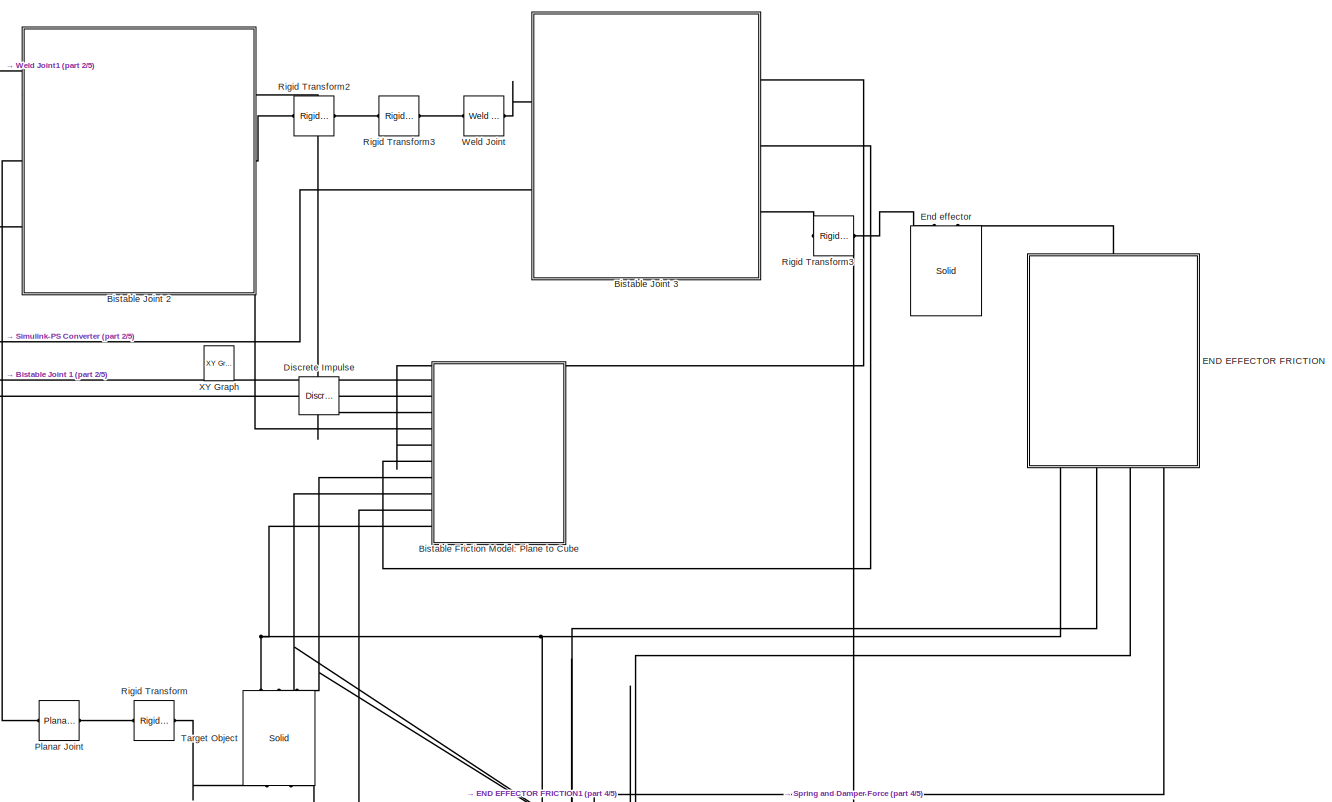
[diagram: root canvas - part 1/5, top center region]
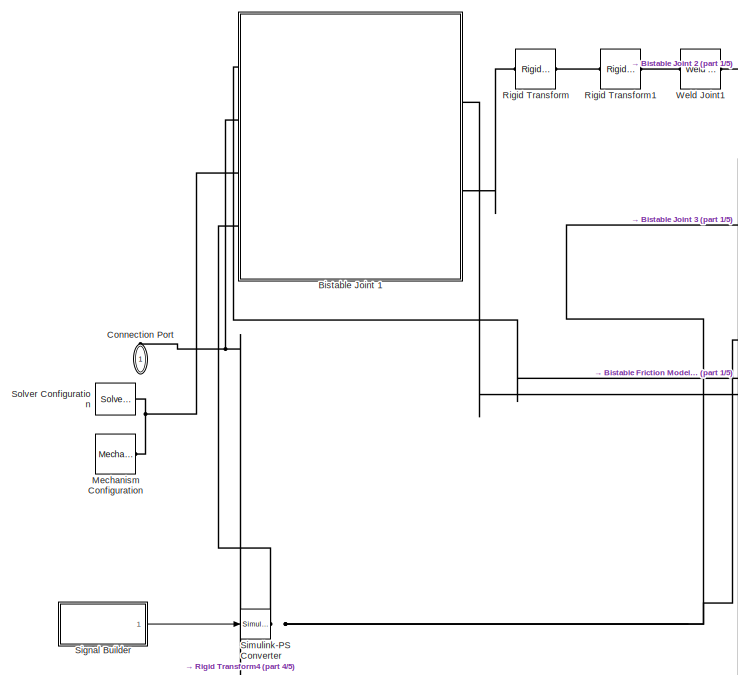
[diagram: root canvas - part 2/5, top left region]
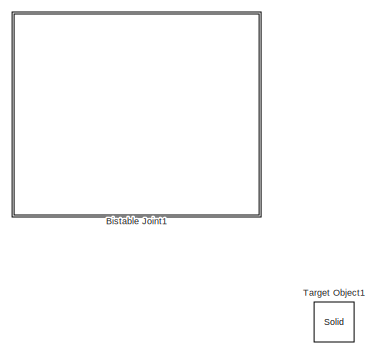
[diagram: root canvas - part 3/5, top right region]
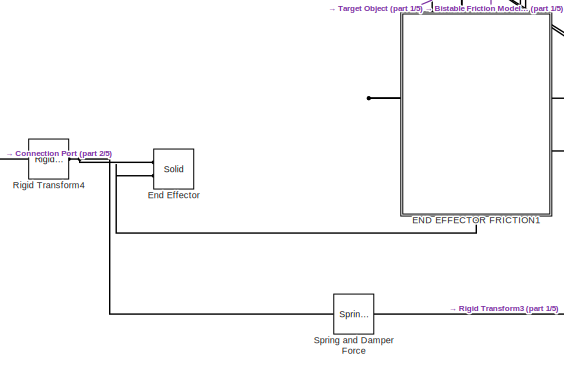
[diagram: root canvas - part 4/5, middle left region]
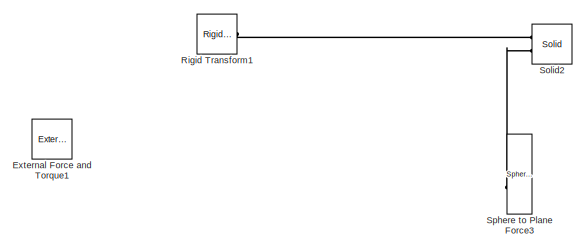
[diagram: root canvas - part 5/5, bottom right region]
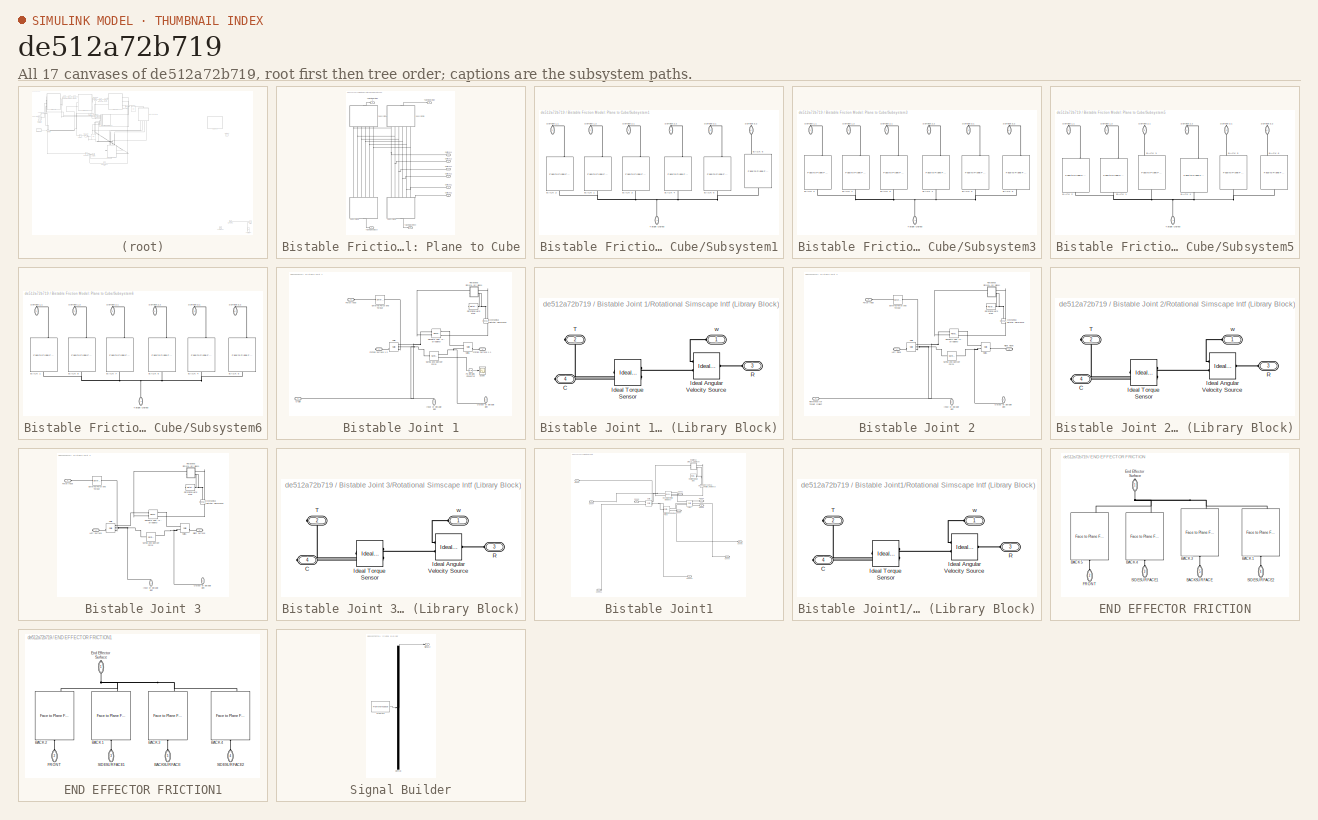
[diagram: thumbnail index - all 17 canvases of the model, root first then tree order]
MODEL slx_de512a72b719
KIND model
CONFIG AbsTol = 1e-7
CONFIG EnableMultiTasking = off
CONFIG FixedStep = auto
CONFIG MaxStep = 1e-4
CONFIG MinStep = auto
CONFIG RelTol = 1e-6
CONFIG SampleTimeConstraint = Unconstrained
CONFIG Solver = ode15s
CONFIG SolverName = ode15s
CONFIG StartTime = 0.0
CONFIG StopTime = 3.0
BLOCK [SubSystem] Bistable Friction Model: Plane to Cube
  Ports = [0, 0, 0, 0, 0, 10]
  RequestExecContextInheritance = off
BLOCK [SubSystem] Bistable Friction Model: Plane to Cube/Subsystem1
  Ports = [0, 0, 0, 0, 0, 1, 6]
  RequestExecContextInheritance = off
BLOCK [Reference] Bistable Friction Model: Plane to Cube/Subsystem1/BACK 1  REF=Contact_Forces_Lib/3D/Composite
Forces/Face to Plane Force
  Ports = [0, 1, 0, 0, 0, 1, 1]
  SourceBlock = Contact_Forces_Lib/3D/Composite\nForces/Face to Plane Force
  SourceProductName = Simscape Multibody Contact Forces Library
  SourceType = Face to Plane Force
BLOCK [Reference] Bistable Friction Model: Plane to Cube/Subsystem1/BACK 2  REF=Contact_Forces_Lib/3D/Composite
Forces/Face to Plane Force
  Ports = [0, 1, 0, 0, 0, 1, 1]
  SourceBlock = Contact_Forces_Lib/3D/Composite\nForces/Face to Plane Force
  SourceProductName = Simscape Multibody Contact Forces Library
  SourceType = Face to Plane Force
BLOCK [Reference] Bistable Friction Model: Plane to Cube/Subsystem1/BACK 3  REF=Contact_Forces_Lib/3D/Composite
Forces/Face to Plane Force
  Ports = [0, 1, 0, 0, 0, 1, 1]
  SourceBlock = Contact_Forces_Lib/3D/Composite\nForces/Face to Plane Force
  SourceProductName = Simscape Multibody Contact Forces Library
  SourceType = Face to Plane Force
BLOCK [Reference] Bistable Friction Model: Plane to Cube/Subsystem1/BACK 4  REF=Contact_Forces_Lib/3D/Composite
Forces/Face to Plane Force
  Ports = [0, 1, 0, 0, 0, 1, 1]
  SourceBlock = Contact_Forces_Lib/3D/Composite\nForces/Face to Plane Force
  SourceProductName = Simscape Multibody Contact Forces Library
  SourceType = Face to Plane Force
BLOCK [Reference] Bistable Friction Model: Plane to Cube/Subsystem1/BACK 5  REF=Contact_Forces_Lib/3D/Composite
Forces/Face to Plane Force
  Ports = [0, 1, 0, 0, 0, 1, 1]
  SourceBlock = Contact_Forces_Lib/3D/Composite\nForces/Face to Plane Force
  SourceProductName = Simscape Multibody Contact Forces Library
  SourceType = Face to Plane Force
BLOCK [Reference] Bistable Friction Model: Plane to Cube/Subsystem1/BACK 6  REF=Contact_Forces_Lib/3D/Composite
Forces/Face to Plane Force
  Ports = [0, 1, 0, 0, 0, 1, 1]
  SourceBlock = Contact_Forces_Lib/3D/Composite\nForces/Face to Plane Force
  SourceProductName = Simscape Multibody Contact Forces Library
  SourceType = Face to Plane Force
BLOCK [PMIOPort] Bistable Friction Model: Plane to Cube/Subsystem1/Surface 1.1
  Side = Right
BLOCK [PMIOPort] Bistable Friction Model: Plane to Cube/Subsystem1/Surface 1.2
  Port = 2
  Side = Right
BLOCK [PMIOPort] Bistable Friction Model: Plane to Cube/Subsystem1/Surface 2.1
  Port = 3
  Side = Right
BLOCK [PMIOPort] Bistable Friction Model: Plane to Cube/Subsystem1/Surface 2.2
  Port = 4
  Side = Right
BLOCK [PMIOPort] Bistable Friction Model: Plane to Cube/Subsystem1/Surface 3.1
  Port = 5
  Side = Right
BLOCK [PMIOPort] Bistable Friction Model: Plane to Cube/Subsystem1/Surface 3.2
  Port = 6
  Side = Right
BLOCK [PMIOPort] Bistable Friction Model: Plane to Cube/Subsystem1/Target Object
  Port = 7
  Side = Left
BLOCK [SubSystem] Bistable Friction Model: Plane to Cube/Subsystem3
  Ports = [0, 0, 0, 0, 0, 1, 6]
  RequestExecContextInheritance = off
BLOCK [Reference] Bistable Friction Model: Plane to Cube/Subsystem3/BACK 1  REF=Contact_Forces_Lib/3D/Composite
Forces/Face to Plane Force
  Ports = [0, 1, 0, 0, 0, 1, 1]
  SourceBlock = Contact_Forces_Lib/3D/Composite\nForces/Face to Plane Force
  SourceProductName = Simscape Multibody Contact Forces Library
  SourceType = Face to Plane Force
BLOCK [Reference] Bistable Friction Model: Plane to Cube/Subsystem3/BACK 2  REF=Contact_Forces_Lib/3D/Composite
Forces/Face to Plane Force
  Ports = [0, 1, 0, 0, 0, 1, 1]
  SourceBlock = Contact_Forces_Lib/3D/Composite\nForces/Face to Plane Force
  SourceProductName = Simscape Multibody Contact Forces Library
  SourceType = Face to Plane Force
BLOCK [Reference] Bistable Friction Model: Plane to Cube/Subsystem3/BACK 3  REF=Contact_Forces_Lib/3D/Composite
Forces/Face to Plane Force
  Ports = [0, 1, 0, 0, 0, 1, 1]
  SourceBlock = Contact_Forces_Lib/3D/Composite\nForces/Face to Plane Force
  SourceProductName = Simscape Multibody Contact Forces Library
  SourceType = Face to Plane Force
BLOCK [Reference] Bistable Friction Model: Plane to Cube/Subsystem3/BACK 4  REF=Contact_Forces_Lib/3D/Composite
Forces/Face to Plane Force
  Ports = [0, 1, 0, 0, 0, 1, 1]
  SourceBlock = Contact_Forces_Lib/3D/Composite\nForces/Face to Plane Force
  SourceProductName = Simscape Multibody Contact Forces Library
  SourceType = Face to Plane Force
BLOCK [Reference] Bistable Friction Model: Plane to Cube/Subsystem3/BACK 5  REF=Contact_Forces_Lib/3D/Composite
Forces/Face to Plane Force
  Ports = [0, 1, 0, 0, 0, 1, 1]
  SourceBlock = Contact_Forces_Lib/3D/Composite\nForces/Face to Plane Force
  SourceProductName = Simscape Multibody Contact Forces Library
  SourceType = Face to Plane Force
BLOCK [Reference] Bistable Friction Model: Plane to Cube/Subsystem3/BACK 6  REF=Contact_Forces_Lib/3D/Composite
Forces/Face to Plane Force
  Ports = [0, 1, 0, 0, 0, 1, 1]
  SourceBlock = Contact_Forces_Lib/3D/Composite\nForces/Face to Plane Force
  SourceProductName = Simscape Multibody Contact Forces Library
  SourceType = Face to Plane Force
BLOCK [PMIOPort] Bistable Friction Model: Plane to Cube/Subsystem3/Surface 1.1
  Side = Right
BLOCK [PMIOPort] Bistable Friction Model: Plane to Cube/Subsystem3/Surface 1.2
  Port = 2
  Side = Right
BLOCK [PMIOPort] Bistable Friction Model: Plane to Cube/Subsystem3/Surface 2.1
  Port = 3
  Side = Right
BLOCK [PMIOPort] Bistable Friction Model: Plane to Cube/Subsystem3/Surface 2.2
  Port = 4
  Side = Right
BLOCK [PMIOPort] Bistable Friction Model: Plane to Cube/Subsystem3/Surface 3.1
  Port = 5
  Side = Right
BLOCK [PMIOPort] Bistable Friction Model: Plane to Cube/Subsystem3/Surface 3.2
  Port = 6
  Side = Right
BLOCK [PMIOPort] Bistable Friction Model: Plane to Cube/Subsystem3/Target Object
  Port = 7
  Side = Left
BLOCK [SubSystem] Bistable Friction Model: Plane to Cube/Subsystem5
  Ports = [0, 0, 0, 0, 0, 1, 6]
  RequestExecContextInheritance = off
BLOCK [Reference] Bistable Friction Model: Plane to Cube/Subsystem5/BACK 1  REF=Contact_Forces_Lib/3D/Composite
Forces/Face to Plane Force
  Ports = [0, 1, 0, 0, 0, 1, 1]
  SourceBlock = Contact_Forces_Lib/3D/Composite\nForces/Face to Plane Force
  SourceProductName = Simscape Multibody Contact Forces Library
  SourceType = Face to Plane Force
BLOCK [Reference] Bistable Friction Model: Plane to Cube/Subsystem5/BACK 2  REF=Contact_Forces_Lib/3D/Composite
Forces/Face to Plane Force
  Ports = [0, 1, 0, 0, 0, 1, 1]
  SourceBlock = Contact_Forces_Lib/3D/Composite\nForces/Face to Plane Force
  SourceProductName = Simscape Multibody Contact Forces Library
  SourceType = Face to Plane Force
BLOCK [Reference] Bistable Friction Model: Plane to Cube/Subsystem5/BACK 3  REF=Contact_Forces_Lib/3D/Composite
Forces/Face to Plane Force
  Ports = [0, 1, 0, 0, 0, 1, 1]
  SourceBlock = Contact_Forces_Lib/3D/Composite\nForces/Face to Plane Force
  SourceProductName = Simscape Multibody Contact Forces Library
  SourceType = Face to Plane Force
BLOCK [Reference] Bistable Friction Model: Plane to Cube/Subsystem5/BACK 4  REF=Contact_Forces_Lib/3D/Composite
Forces/Face to Plane Force
  Ports = [0, 1, 0, 0, 0, 1, 1]
  SourceBlock = Contact_Forces_Lib/3D/Composite\nForces/Face to Plane Force
  SourceProductName = Simscape Multibody Contact Forces Library
  SourceType = Face to Plane Force
BLOCK [Reference] Bistable Friction Model: Plane to Cube/Subsystem5/BACK 5  REF=Contact_Forces_Lib/3D/Composite
Forces/Face to Plane Force
  Ports = [0, 1, 0, 0, 0, 1, 1]
  SourceBlock = Contact_Forces_Lib/3D/Composite\nForces/Face to Plane Force
  SourceProductName = Simscape Multibody Contact Forces Library
  SourceType = Face to Plane Force
BLOCK [Reference] Bistable Friction Model: Plane to Cube/Subsystem5/BACK 6  REF=Contact_Forces_Lib/3D/Composite
Forces/Face to Plane Force
  Ports = [0, 1, 0, 0, 0, 1, 1]
  SourceBlock = Contact_Forces_Lib/3D/Composite\nForces/Face to Plane Force
  SourceProductName = Simscape Multibody Contact Forces Library
  SourceType = Face to Plane Force
BLOCK [PMIOPort] Bistable Friction Model: Plane to Cube/Subsystem5/Surface 1.1
  Side = Right
BLOCK [PMIOPort] Bistable Friction Model: Plane to Cube/Subsystem5/Surface 1.2
  Port = 2
  Side = Right
BLOCK [PMIOPort] Bistable Friction Model: Plane to Cube/Subsystem5/Surface 2.1
  Port = 3
  Side = Right
BLOCK [PMIOPort] Bistable Friction Model: Plane to Cube/Subsystem5/Surface 2.2
  Port = 4
  Side = Right
BLOCK [PMIOPort] Bistable Friction Model: Plane to Cube/Subsystem5/Surface 3.1
  Port = 5
  Side = Right
BLOCK [PMIOPort] Bistable Friction Model: Plane to Cube/Subsystem5/Surface 3.2
  Port = 6
  Side = Right
BLOCK [PMIOPort] Bistable Friction Model: Plane to Cube/Subsystem5/Target Object
  Port = 7
  Side = Left
BLOCK [SubSystem] Bistable Friction Model: Plane to Cube/Subsystem6
  Ports = [0, 0, 0, 0, 0, 1, 6]
  RequestExecContextInheritance = off
BLOCK [Reference] Bistable Friction Model: Plane to Cube/Subsystem6/BACK 1  REF=Contact_Forces_Lib/3D/Composite
Forces/Face to Plane Force
  Ports = [0, 1, 0, 0, 0, 1, 1]
  SourceBlock = Contact_Forces_Lib/3D/Composite\nForces/Face to Plane Force
  SourceProductName = Simscape Multibody Contact Forces Library
  SourceType = Face to Plane Force
BLOCK [Reference] Bistable Friction Model: Plane to Cube/Subsystem6/BACK 4  REF=Contact_Forces_Lib/3D/Composite
Forces/Face to Plane Force
  Ports = [0, 1, 0, 0, 0, 1, 1]
  SourceBlock = Contact_Forces_Lib/3D/Composite\nForces/Face to Plane Force
  SourceProductName = Simscape Multibody Contact Forces Library
  SourceType = Face to Plane Force
BLOCK [Reference] Bistable Friction Model: Plane to Cube/Subsystem6/BACK 5  REF=Contact_Forces_Lib/3D/Composite
Forces/Face to Plane Force
  Ports = [0, 1, 0, 0, 0, 1, 1]
  SourceBlock = Contact_Forces_Lib/3D/Composite\nForces/Face to Plane Force
  SourceProductName = Simscape Multibody Contact Forces Library
  SourceType = Face to Plane Force
BLOCK [Reference] Bistable Friction Model: Plane to Cube/Subsystem6/BACK 6  REF=Contact_Forces_Lib/3D/Composite
Forces/Face to Plane Force
  Ports = [0, 1, 0, 0, 0, 1, 1]
  SourceBlock = Contact_Forces_Lib/3D/Composite\nForces/Face to Plane Force
  SourceProductName = Simscape Multibody Contact Forces Library
  SourceType = Face to Plane Force
BLOCK [Reference] Bistable Friction Model: Plane to Cube/Subsystem6/BACK 7  REF=Contact_Forces_Lib/3D/Composite
Forces/Face to Plane Force
  Ports = [0, 1, 0, 0, 0, 1, 1]
  SourceBlock = Contact_Forces_Lib/3D/Composite\nForces/Face to Plane Force
  SourceProductName = Simscape Multibody Contact Forces Library
  SourceType = Face to Plane Force
BLOCK [Reference] Bistable Friction Model: Plane to Cube/Subsystem6/BACK 8  REF=Contact_Forces_Lib/3D/Composite
Forces/Face to Plane Force
  Ports = [0, 1, 0, 0, 0, 1, 1]
  SourceBlock = Contact_Forces_Lib/3D/Composite\nForces/Face to Plane Force
  SourceProductName = Simscape Multibody Contact Forces Library
  SourceType = Face to Plane Force
BLOCK [PMIOPort] Bistable Friction Model: Plane to Cube/Subsystem6/Surface 1.1
  Side = Right
BLOCK [PMIOPort] Bistable Friction Model: Plane to Cube/Subsystem6/Surface 1.2
  Port = 2
  Side = Right
BLOCK [PMIOPort] Bistable Friction Model: Plane to Cube/Subsystem6/Surface 2.1
  Port = 3
  Side = Right
BLOCK [PMIOPort] Bistable Friction Model: Plane to Cube/Subsystem6/Surface 2.2
  Port = 4
  Side = Right
BLOCK [PMIOPort] Bistable Friction Model: Plane to Cube/Subsystem6/Surface 3.1
  Port = 5
  Side = Right
BLOCK [PMIOPort] Bistable Friction Model: Plane to Cube/Subsystem6/Surface 3.2
  Port = 6
  Side = Right
BLOCK [PMIOPort] Bistable Friction Model: Plane to Cube/Subsystem6/Target Object
  Port = 7
  Side = Left
BLOCK [PMIOPort] Bistable Friction Model: Plane to Cube/Surface 1.1
  Side = Left
BLOCK [PMIOPort] Bistable Friction Model: Plane to Cube/Surface 1.2
  Port = 2
  Side = Left
BLOCK [PMIOPort] Bistable Friction Model: Plane to Cube/Surface 2.1
  Port = 3
  Side = Left
BLOCK [PMIOPort] Bistable Friction Model: Plane to Cube/Surface 2.2
  Port = 4
  Side = Left
BLOCK [PMIOPort] Bistable Friction Model: Plane to Cube/Surface 3.1
  Port = 5
  Side = Left
BLOCK [PMIOPort] Bistable Friction Model: Plane to Cube/Surface 3.2
  Port = 6
  Side = Left
BLOCK [PMIOPort] Bistable Friction Model: Plane to Cube/Target Object Back
  Port = 7
  Side = Left
BLOCK [PMIOPort] Bistable Friction Model: Plane to Cube/Target Object Front
  Port = 10
  Side = Left
BLOCK [PMIOPort] Bistable Friction Model: Plane to Cube/Target Object Side
  Port = 8
  Side = Left
BLOCK [PMIOPort] Bistable Friction Model: Plane to Cube/Target Object Side 2
  Port = 9
  Side = Left
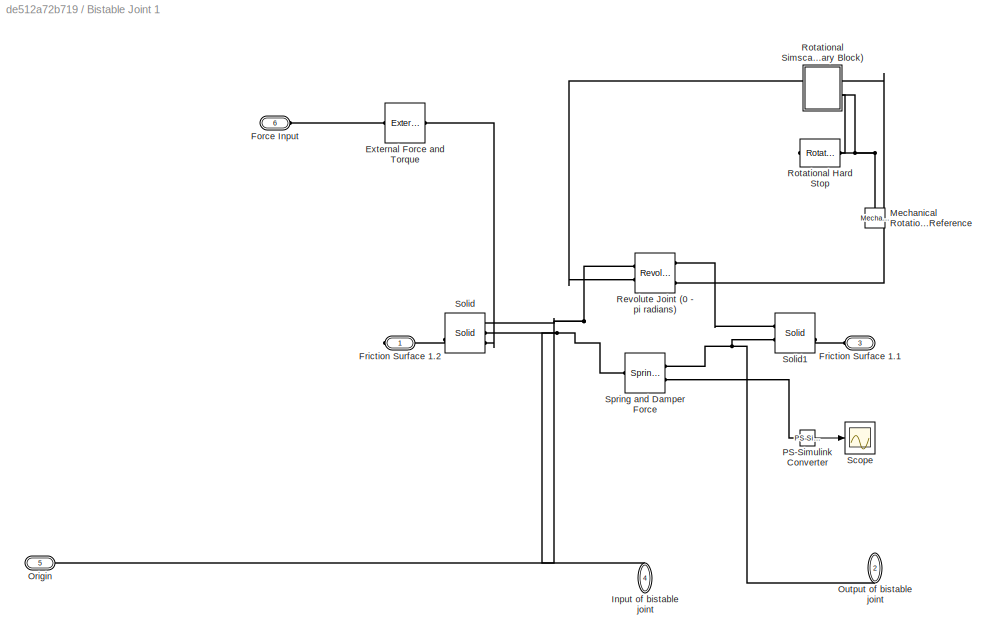
BLOCK [SubSystem] Bistable Joint 1
  Ports = [0, 0, 0, 0, 0, 4, 2]
  RequestExecContextInheritance = off
BLOCK [Reference] Bistable Joint 1/External Force and Torque  REF=sm_lib/Forces and
Torques/External Force
and Torque
  Ports = [0, 0, 0, 0, 0, 1, 1]
  SourceBlock = sm_lib/Forces and\nTorques/External Force\nand Torque
  SourceProductBaseCode = MS
  SourceProductName = Simscape Multibody
  SourceType = External Force\nand Torque
BLOCK [PMIOPort] Bistable Joint 1/Force Input
  Port = 6
  Side = Left
BLOCK [PMIOPort] Bistable Joint 1/Friction Surface 1.1
  Port = 3
  Side = Left
BLOCK [PMIOPort] Bistable Joint 1/Friction Surface 1.2
  Side = Right
BLOCK [PMIOPort] Bistable Joint 1/Input of bistable joint
  Port = 4
  Side = Left
BLOCK [Reference] Bistable Joint 1/Mechanical Rotational Reference  REF=fl_lib/Mechanical/Rotational Elements/Mechanical
Rotational Reference
  Ports = [0, 0, 0, 0, 0, 1]
  SourceBlock = fl_lib/Mechanical/Rotational Elements/Mechanical\nRotational Reference
  SourceProductBaseCode = SS
  SourceProductName = Simscape
  SourceType = Mechanical\nRotational Reference
BLOCK [PMIOPort] Bistable Joint 1/Origin
  Port = 5
  Side = Left
BLOCK [PMIOPort] Bistable Joint 1/Output of bistable joint
  Port = 2
  Side = Right
BLOCK [Reference] Bistable Joint 1/PS-Simulink Converter  REF=nesl_utility/PS-Simulink
Converter
  Ports = [0, 1, 0, 0, 0, 1]
  SourceBlock = nesl_utility/PS-Simulink\nConverter
  SourceProductBaseCode = SS
  SourceProductName = Simscape
  SourceType = PS-Simulink\nConverter
BLOCK [Reference] Bistable Joint 1/Revolute Joint (0 - pi radians)  REF=sm_lib/Joints/Revolute Joint
  Ports = [0, 0, 0, 0, 0, 2, 3]
  SourceBlock = sm_lib/Joints/Revolute Joint
  SourceProductBaseCode = MS
  SourceProductName = Simscape Multibody
  SourceType = Revolute Joint
BLOCK [Reference] Bistable Joint 1/Rotational Hard Stop  REF=fl_lib/Mechanical/Rotational Elements/Rotational Hard Stop
  Ports = [0, 0, 0, 0, 0, 1, 1]
  SourceBlock = fl_lib/Mechanical/Rotational Elements/Rotational Hard Stop
  SourceProductBaseCode = SS
  SourceProductName = Simscape
  SourceType = Rotational Hard Stop
BLOCK [SubSystem] Bistable Joint 1/Rotational Simscape Intf (Library Block)
  Ports = [0, 0, 0, 0, 0, 2, 2]
  RequestExecContextInheritance = off
BLOCK [PMIOPort] Bistable Joint 1/Rotational Simscape Intf (Library Block)/C
  Port = 4
  Side = Right
BLOCK [Reference] Bistable Joint 1/Rotational Simscape Intf (Library Block)/Ideal Angular Velocity Source  REF=fl_lib/Mechanical/Mechanical Sources/Ideal Angular
Velocity Source
  Ports = [0, 0, 0, 0, 0, 1, 2]
  SourceBlock = fl_lib/Mechanical/Mechanical Sources/Ideal Angular\nVelocity Source
  SourceProductBaseCode = SS
  SourceProductName = Simscape
  SourceType = Ideal Angular\nVelocity Source
BLOCK [Reference] Bistable Joint 1/Rotational Simscape Intf (Library Block)/Ideal Torque Sensor  REF=fl_lib/Mechanical/Mechanical Sensors/Ideal Torque Sensor
  Ports = [0, 0, 0, 0, 0, 1, 2]
  SourceBlock = fl_lib/Mechanical/Mechanical Sensors/Ideal Torque Sensor
  SourceProductBaseCode = SS
  SourceProductName = Simscape
  SourceType = Ideal Torque Sensor
BLOCK [PMIOPort] Bistable Joint 1/Rotational Simscape Intf (Library Block)/R
  Port = 3
  Side = Left
BLOCK [PMIOPort] Bistable Joint 1/Rotational Simscape Intf (Library Block)/T
  Port = 2
  Side = Right
BLOCK [PMIOPort] Bistable Joint 1/Rotational Simscape Intf (Library Block)/w
  Side = Left
BLOCK [Scope] Bistable Joint 1/Scope
  Floating = off
  NumInputPorts = 1
  Ports = [1]
  ScopeSpecificationString = Simulink.scopes.TimeScopeBlockCfg('CurrentConfiguration', extmgr.ConfigurationSet(extmgr.Configuration('Core','General UI',true),extmgr.Configuration('Core','Source UI',true),extmgr.Configuration('Sources','WiredSimulink',true),extmgr.Configuration('Visuals','Time Domain',true,'SerializedDisplays',{struct('MinYLimReal','-3.53202','MaxYLimReal','-2.78757','YLabelReal','','MinYLimMag','0.00000','Max...<+1416ch>
BLOCK [Reference] Bistable Joint 1/Solid  REF=sm_lib/Body Elements/Solid
  Ports = [0, 0, 0, 0, 0, 3, 2]
  SourceBlock = sm_lib/Body Elements/Solid
  SourceProductBaseCode = MS
  SourceProductName = Simscape Multibody
  SourceType = Solid
BLOCK [Reference] Bistable Joint 1/Solid1  REF=sm_lib/Body Elements/Solid
  Ports = [0, 0, 0, 0, 0, 2, 2]
  SourceBlock = sm_lib/Body Elements/Solid
  SourceProductBaseCode = MS
  SourceProductName = Simscape Multibody
  SourceType = Solid
BLOCK [Reference] Bistable Joint 1/Spring and Damper Force  REF=sm_lib/Forces and
Torques/Spring and
Damper Force
  Ports = [0, 0, 0, 0, 0, 1, 2]
  SourceBlock = sm_lib/Forces and\nTorques/Spring and\nDamper Force
  SourceProductBaseCode = MS
  SourceProductName = Simscape Multibody
  SourceType = Spring and\nDamper Force
BLOCK [SubSystem] Bistable Joint 2
  Ports = [0, 0, 0, 0, 0, 3, 3]
  RequestExecContextInheritance = off
BLOCK [Reference] Bistable Joint 2/External Force and Torque  REF=sm_lib/Forces and
Torques/External Force
and Torque
  Ports = [0, 0, 0, 0, 0, 1, 1]
  SourceBlock = sm_lib/Forces and\nTorques/External Force\nand Torque
  SourceProductBaseCode = MS
  SourceProductName = Simscape Multibody
  SourceType = External Force\nand Torque
BLOCK [PMIOPort] Bistable Joint 2/Force Input
  Port = 5
  Side = Left
BLOCK [PMIOPort] Bistable Joint 2/Input of bistable joint
  Port = 3
  Side = Left
BLOCK [PMIOPort] Bistable Joint 2/Left Plane
  Side = Right
BLOCK [Reference] Bistable Joint 2/Mechanical Rotational Reference  REF=fl_lib/Mechanical/Rotational Elements/Mechanical
Rotational Reference
  Ports = [0, 0, 0, 0, 0, 1]
  SourceBlock = fl_lib/Mechanical/Rotational Elements/Mechanical\nRotational Reference
  SourceProductBaseCode = SS
  SourceProductName = Simscape
  SourceType = Mechanical\nRotational Reference
BLOCK [PMIOPort] Bistable Joint 2/Output of bistable joint
  Port = 2
  Side = Right
BLOCK [PMIOPort] Bistable Joint 2/Reference for Target Object
  Port = 4
  Side = Left
BLOCK [Reference] Bistable Joint 2/Revolute Joint (0 - pi radians)  REF=sm_lib/Joints/Revolute Joint
  Ports = [0, 0, 0, 0, 0, 2, 3]
  SourceBlock = sm_lib/Joints/Revolute Joint
  SourceProductBaseCode = MS
  SourceProductName = Simscape Multibody
  SourceType = Revolute Joint
BLOCK [PMIOPort] Bistable Joint 2/Right Plane
  Port = 6
  Side = Right
BLOCK [Reference] Bistable Joint 2/Rotational Hard Stop  REF=fl_lib/Mechanical/Rotational Elements/Rotational Hard Stop
  Ports = [0, 0, 0, 0, 0, 1, 1]
  SourceBlock = fl_lib/Mechanical/Rotational Elements/Rotational Hard Stop
  SourceProductBaseCode = SS
  SourceProductName = Simscape
  SourceType = Rotational Hard Stop
BLOCK [SubSystem] Bistable Joint 2/Rotational Simscape Intf (Library Block)
  Ports = [0, 0, 0, 0, 0, 2, 2]
  RequestExecContextInheritance = off
BLOCK [PMIOPort] Bistable Joint 2/Rotational Simscape Intf (Library Block)/C
  Port = 4
  Side = Right
BLOCK [Reference] Bistable Joint 2/Rotational Simscape Intf (Library Block)/Ideal Angular Velocity Source  REF=fl_lib/Mechanical/Mechanical Sources/Ideal Angular
Velocity Source
  Ports = [0, 0, 0, 0, 0, 1, 2]
  SourceBlock = fl_lib/Mechanical/Mechanical Sources/Ideal Angular\nVelocity Source
  SourceProductBaseCode = SS
  SourceProductName = Simscape
  SourceType = Ideal Angular\nVelocity Source
BLOCK [Reference] Bistable Joint 2/Rotational Simscape Intf (Library Block)/Ideal Torque Sensor  REF=fl_lib/Mechanical/Mechanical Sensors/Ideal Torque Sensor
  Ports = [0, 0, 0, 0, 0, 1, 2]
  SourceBlock = fl_lib/Mechanical/Mechanical Sensors/Ideal Torque Sensor
  SourceProductBaseCode = SS
  SourceProductName = Simscape
  SourceType = Ideal Torque Sensor
BLOCK [PMIOPort] Bistable Joint 2/Rotational Simscape Intf (Library Block)/R
  Port = 3
  Side = Left
BLOCK [PMIOPort] Bistable Joint 2/Rotational Simscape Intf (Library Block)/T
  Port = 2
  Side = Right
BLOCK [PMIOPort] Bistable Joint 2/Rotational Simscape Intf (Library Block)/w
  Side = Left
BLOCK [Reference] Bistable Joint 2/Solid  REF=sm_lib/Body Elements/Solid
  Ports = [0, 0, 0, 0, 0, 3, 2]
  SourceBlock = sm_lib/Body Elements/Solid
  SourceProductBaseCode = MS
  SourceProductName = Simscape Multibody
  SourceType = Solid
BLOCK [Reference] Bistable Joint 2/Solid1  REF=sm_lib/Body Elements/Solid
  Ports = [0, 0, 0, 0, 0, 2, 2]
  SourceBlock = sm_lib/Body Elements/Solid
  SourceProductBaseCode = MS
  SourceProductName = Simscape Multibody
  SourceType = Solid
BLOCK [Reference] Bistable Joint 2/Spring and Damper Force  REF=sm_lib/Forces and
Torques/Spring and
Damper Force
  Ports = [0, 0, 0, 0, 0, 1, 1]
  SourceBlock = sm_lib/Forces and\nTorques/Spring and\nDamper Force
  SourceProductBaseCode = MS
  SourceProductName = Simscape Multibody
  SourceType = Spring and\nDamper Force
BLOCK [SubSystem] Bistable Joint 3
  Ports = [0, 0, 0, 0, 0, 2, 3]
  RequestExecContextInheritance = off
BLOCK [Reference] Bistable Joint 3/External Force and Torque  REF=sm_lib/Forces and
Torques/External Force
and Torque
  Ports = [0, 0, 0, 0, 0, 1, 1]
  SourceBlock = sm_lib/Forces and\nTorques/External Force\nand Torque
  SourceProductBaseCode = MS
  SourceProductName = Simscape Multibody
  SourceType = External Force\nand Torque
BLOCK [PMIOPort] Bistable Joint 3/Force Input
  Port = 5
  Side = Left
BLOCK [PMIOPort] Bistable Joint 3/Input of bistable joint
  Port = 4
  Side = Left
BLOCK [PMIOPort] Bistable Joint 3/Left Surface
  Side = Right
BLOCK [Reference] Bistable Joint 3/Mechanical Rotational Reference  REF=fl_lib/Mechanical/Rotational Elements/Mechanical
Rotational Reference
  Ports = [0, 0, 0, 0, 0, 1]
  SourceBlock = fl_lib/Mechanical/Rotational Elements/Mechanical\nRotational Reference
  SourceProductBaseCode = SS
  SourceProductName = Simscape
  SourceType = Mechanical\nRotational Reference
BLOCK [PMIOPort] Bistable Joint 3/Output of bistable joint
  Port = 3
  Side = Right
BLOCK [Reference] Bistable Joint 3/Revolute Joint (0 - pi radians)  REF=sm_lib/Joints/Revolute Joint
  Ports = [0, 0, 0, 0, 0, 2, 3]
  SourceBlock = sm_lib/Joints/Revolute Joint
  SourceProductBaseCode = MS
  SourceProductName = Simscape Multibody
  SourceType = Revolute Joint
BLOCK [PMIOPort] Bistable Joint 3/Right Surface
  Port = 2
  Side = Right
BLOCK [Reference] Bistable Joint 3/Rotational Hard Stop  REF=fl_lib/Mechanical/Rotational Elements/Rotational Hard Stop
  Ports = [0, 0, 0, 0, 0, 1, 1]
  SourceBlock = fl_lib/Mechanical/Rotational Elements/Rotational Hard Stop
  SourceProductBaseCode = SS
  SourceProductName = Simscape
  SourceType = Rotational Hard Stop
BLOCK [SubSystem] Bistable Joint 3/Rotational Simscape Intf (Library Block)
  Ports = [0, 0, 0, 0, 0, 2, 2]
  RequestExecContextInheritance = off
BLOCK [PMIOPort] Bistable Joint 3/Rotational Simscape Intf (Library Block)/C
  Port = 4
  Side = Right
BLOCK [Reference] Bistable Joint 3/Rotational Simscape Intf (Library Block)/Ideal Angular Velocity Source  REF=fl_lib/Mechanical/Mechanical Sources/Ideal Angular
Velocity Source
  Ports = [0, 0, 0, 0, 0, 1, 2]
  SourceBlock = fl_lib/Mechanical/Mechanical Sources/Ideal Angular\nVelocity Source
  SourceProductBaseCode = SS
  SourceProductName = Simscape
  SourceType = Ideal Angular\nVelocity Source
BLOCK [Reference] Bistable Joint 3/Rotational Simscape Intf (Library Block)/Ideal Torque Sensor  REF=fl_lib/Mechanical/Mechanical Sensors/Ideal Torque Sensor
  Ports = [0, 0, 0, 0, 0, 1, 2]
  SourceBlock = fl_lib/Mechanical/Mechanical Sensors/Ideal Torque Sensor
  SourceProductBaseCode = SS
  SourceProductName = Simscape
  SourceType = Ideal Torque Sensor
BLOCK [PMIOPort] Bistable Joint 3/Rotational Simscape Intf (Library Block)/R
  Port = 3
  Side = Left
BLOCK [PMIOPort] Bistable Joint 3/Rotational Simscape Intf (Library Block)/T
  Port = 2
  Side = Right
BLOCK [PMIOPort] Bistable Joint 3/Rotational Simscape Intf (Library Block)/w
  Side = Left
BLOCK [Reference] Bistable Joint 3/Solid  REF=sm_lib/Body Elements/Solid
  Ports = [0, 0, 0, 0, 0, 3, 2]
  SourceBlock = sm_lib/Body Elements/Solid
  SourceProductBaseCode = MS
  SourceProductName = Simscape Multibody
  SourceType = Solid
BLOCK [Reference] Bistable Joint 3/Solid1  REF=sm_lib/Body Elements/Solid
  Ports = [0, 0, 0, 0, 0, 2, 2]
  SourceBlock = sm_lib/Body Elements/Solid
  SourceProductBaseCode = MS
  SourceProductName = Simscape Multibody
  SourceType = Solid
BLOCK [Reference] Bistable Joint 3/Spring and Damper Force  REF=sm_lib/Forces and
Torques/Spring and
Damper Force
  Ports = [0, 0, 0, 0, 0, 1, 2]
  SourceBlock = sm_lib/Forces and\nTorques/Spring and\nDamper Force
  SourceProductBaseCode = MS
  SourceProductName = Simscape Multibody
  SourceType = Spring and\nDamper Force
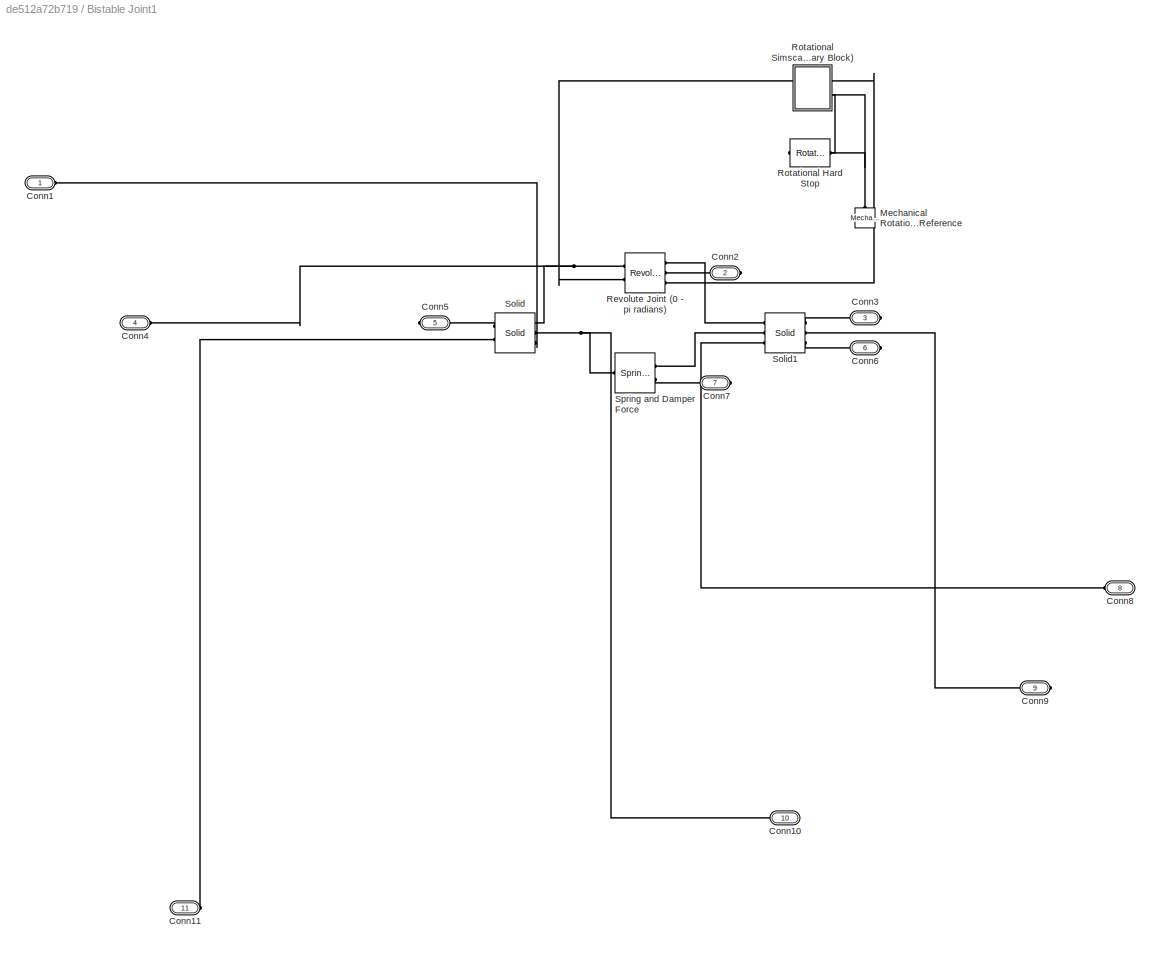
BLOCK [SubSystem] Bistable Joint1
  Commented = on
  Ports = [0, 0, 0, 0, 0, 3, 8]
  RequestExecContextInheritance = off
BLOCK [PMIOPort] Bistable Joint1/Conn1
  Side = Left
BLOCK [PMIOPort] Bistable Joint1/Conn10
  Port = 10
  Side = Right
BLOCK [PMIOPort] Bistable Joint1/Conn11
  Port = 11
  Side = Right
BLOCK [PMIOPort] Bistable Joint1/Conn2
  Port = 2
  Side = Right
BLOCK [PMIOPort] Bistable Joint1/Conn3
  Port = 3
  Side = Right
BLOCK [PMIOPort] Bistable Joint1/Conn4
  Port = 4
  Side = Left
BLOCK [PMIOPort] Bistable Joint1/Conn5
  Port = 5
  Side = Right
BLOCK [PMIOPort] Bistable Joint1/Conn6
  Port = 6
  Side = Right
BLOCK [PMIOPort] Bistable Joint1/Conn7
  Port = 7
  Side = Right
BLOCK [PMIOPort] Bistable Joint1/Conn8
  Port = 8
  Side = Left
BLOCK [PMIOPort] Bistable Joint1/Conn9
  Port = 9
  Side = Right
BLOCK [Reference] Bistable Joint1/Mechanical Rotational Reference  REF=fl_lib/Mechanical/Rotational Elements/Mechanical
Rotational Reference
  Ports = [0, 0, 0, 0, 0, 1]
  SourceBlock = fl_lib/Mechanical/Rotational Elements/Mechanical\nRotational Reference
  SourceProductBaseCode = SS
  SourceProductName = Simscape
  SourceType = Mechanical\nRotational Reference
BLOCK [Reference] Bistable Joint1/Revolute Joint (0 - pi radians)  REF=sm_lib/Joints/Revolute Joint
  Ports = [0, 0, 0, 0, 0, 2, 3]
  SourceBlock = sm_lib/Joints/Revolute Joint
  SourceProductBaseCode = MS
  SourceProductName = Simscape Multibody
  SourceType = Revolute Joint
BLOCK [Reference] Bistable Joint1/Rotational Hard Stop  REF=fl_lib/Mechanical/Rotational Elements/Rotational Hard Stop
  Ports = [0, 0, 0, 0, 0, 1, 1]
  SourceBlock = fl_lib/Mechanical/Rotational Elements/Rotational Hard Stop
  SourceProductBaseCode = SS
  SourceProductName = Simscape
  SourceType = Rotational Hard Stop
BLOCK [SubSystem] Bistable Joint1/Rotational Simscape Intf (Library Block)
  Ports = [0, 0, 0, 0, 0, 2, 2]
  RequestExecContextInheritance = off
BLOCK [PMIOPort] Bistable Joint1/Rotational Simscape Intf (Library Block)/C
  Port = 4
  Side = Right
BLOCK [Reference] Bistable Joint1/Rotational Simscape Intf (Library Block)/Ideal Angular Velocity Source  REF=fl_lib/Mechanical/Mechanical Sources/Ideal Angular
Velocity Source
  Ports = [0, 0, 0, 0, 0, 1, 2]
  SourceBlock = fl_lib/Mechanical/Mechanical Sources/Ideal Angular\nVelocity Source
  SourceProductBaseCode = SS
  SourceProductName = Simscape
  SourceType = Ideal Angular\nVelocity Source
BLOCK [Reference] Bistable Joint1/Rotational Simscape Intf (Library Block)/Ideal Torque Sensor  REF=fl_lib/Mechanical/Mechanical Sensors/Ideal Torque Sensor
  Ports = [0, 0, 0, 0, 0, 1, 2]
  SourceBlock = fl_lib/Mechanical/Mechanical Sensors/Ideal Torque Sensor
  SourceProductBaseCode = SS
  SourceProductName = Simscape
  SourceType = Ideal Torque Sensor
BLOCK [PMIOPort] Bistable Joint1/Rotational Simscape Intf (Library Block)/R
  Port = 3
  Side = Left
BLOCK [PMIOPort] Bistable Joint1/Rotational Simscape Intf (Library Block)/T
  Port = 2
  Side = Right
BLOCK [PMIOPort] Bistable Joint1/Rotational Simscape Intf (Library Block)/w
  Side = Left
BLOCK [Reference] Bistable Joint1/Solid  REF=sm_lib/Body Elements/Solid
  Ports = [0, 0, 0, 0, 0, 3, 2]
  SourceBlock = sm_lib/Body Elements/Solid
  SourceProductBaseCode = MS
  SourceProductName = Simscape Multibody
  SourceType = Solid
BLOCK [Reference] Bistable Joint1/Solid1  REF=sm_lib/Body Elements/Solid
  Ports = [0, 0, 0, 0, 0, 3, 3]
  SourceBlock = sm_lib/Body Elements/Solid
  SourceProductBaseCode = MS
  SourceProductName = Simscape Multibody
  SourceType = Solid
BLOCK [Reference] Bistable Joint1/Spring and Damper Force  REF=sm_lib/Forces and
Torques/Spring and
Damper Force
  Ports = [0, 0, 0, 0, 0, 1, 2]
  SourceBlock = sm_lib/Forces and\nTorques/Spring and\nDamper Force
  SourceProductBaseCode = MS
  SourceProductName = Simscape Multibody
  SourceType = Spring and\nDamper Force
BLOCK [PMIOPort] Connection Port
  Side = Left
BLOCK [Reference] Discrete Impulse  REF=dspsrcs4/Discrete 
Impulse
  IOType = siggen
  Ports = [0, 1]
  SourceBlock = dspsrcs4/Discrete \nImpulse
  SourceProductBaseCode = DS
  SourceProductName = DSP System Toolbox
  SourceType = Discrete Impulse
BLOCK [SubSystem] END EFFECTOR FRICTION
  Ports = [0, 0, 0, 0, 0, 4, 1]
  RequestExecContextInheritance = off
BLOCK [Reference] END EFFECTOR FRICTION/BACK 1  REF=Contact_Forces_Lib/3D/Composite
Forces/Face to Plane Force
  Ports = [0, 1, 0, 0, 0, 1, 1]
  SourceBlock = Contact_Forces_Lib/3D/Composite\nForces/Face to Plane Force
  SourceProductName = Simscape Multibody Contact Forces Library
  SourceType = Face to Plane Force
BLOCK [Reference] END EFFECTOR FRICTION/BACK 3  REF=Contact_Forces_Lib/3D/Composite
Forces/Face to Plane Force
  Ports = [0, 1, 0, 0, 0, 1, 1]
  SourceBlock = Contact_Forces_Lib/3D/Composite\nForces/Face to Plane Force
  SourceProductName = Simscape Multibody Contact Forces Library
  SourceType = Face to Plane Force
BLOCK [Reference] END EFFECTOR FRICTION/BACK 4  REF=Contact_Forces_Lib/3D/Composite
Forces/Face to Plane Force
  Ports = [0, 1, 0, 0, 0, 1, 1]
  SourceBlock = Contact_Forces_Lib/3D/Composite\nForces/Face to Plane Force
  SourceProductName = Simscape Multibody Contact Forces Library
  SourceType = Face to Plane Force
BLOCK [Reference] END EFFECTOR FRICTION/BACK 5  REF=Contact_Forces_Lib/3D/Composite
Forces/Face to Plane Force
  Ports = [0, 1, 0, 0, 0, 1, 1]
  SourceBlock = Contact_Forces_Lib/3D/Composite\nForces/Face to Plane Force
  SourceProductName = Simscape Multibody Contact Forces Library
  SourceType = Face to Plane Force
BLOCK [PMIOPort] END EFFECTOR FRICTION/BACKSURFACE
  Port = 5
  Side = Left
BLOCK [PMIOPort] END EFFECTOR FRICTION/End Effector Surface
  Side = Right
BLOCK [PMIOPort] END EFFECTOR FRICTION/FRONT
  Port = 2
  Side = Left
BLOCK [PMIOPort] END EFFECTOR FRICTION/SIDESURFACE1
  Port = 3
  Side = Left
BLOCK [PMIOPort] END EFFECTOR FRICTION/SIDESURFACE2
  Port = 4
  Side = Left
BLOCK [SubSystem] END EFFECTOR FRICTION1
  Ports = [0, 0, 0, 0, 0, 4, 1]
  RequestExecContextInheritance = off
BLOCK [Reference] END EFFECTOR FRICTION1/BACK 1  REF=Contact_Forces_Lib/3D/Composite
Forces/Face to Plane Force
  Ports = [0, 1, 0, 0, 0, 1, 1]
  SourceBlock = Contact_Forces_Lib/3D/Composite\nForces/Face to Plane Force
  SourceProductName = Simscape Multibody Contact Forces Library
  SourceType = Face to Plane Force
BLOCK [Reference] END EFFECTOR FRICTION1/BACK 2  REF=Contact_Forces_Lib/3D/Composite
Forces/Face to Plane Force
  Ports = [0, 1, 0, 0, 0, 1, 1]
  SourceBlock = Contact_Forces_Lib/3D/Composite\nForces/Face to Plane Force
  SourceProductName = Simscape Multibody Contact Forces Library
  SourceType = Face to Plane Force
BLOCK [Reference] END EFFECTOR FRICTION1/BACK 3  REF=Contact_Forces_Lib/3D/Composite
Forces/Face to Plane Force
  Ports = [0, 1, 0, 0, 0, 1, 1]
  SourceBlock = Contact_Forces_Lib/3D/Composite\nForces/Face to Plane Force
  SourceProductName = Simscape Multibody Contact Forces Library
  SourceType = Face to Plane Force
BLOCK [Reference] END EFFECTOR FRICTION1/BACK 4  REF=Contact_Forces_Lib/3D/Composite
Forces/Face to Plane Force
  Ports = [0, 1, 0, 0, 0, 1, 1]
  SourceBlock = Contact_Forces_Lib/3D/Composite\nForces/Face to Plane Force
  SourceProductName = Simscape Multibody Contact Forces Library
  SourceType = Face to Plane Force
BLOCK [PMIOPort] END EFFECTOR FRICTION1/BACKSURFACE
  Port = 5
  Side = Left
BLOCK [PMIOPort] END EFFECTOR FRICTION1/End Effector Surface
  Side = Right
BLOCK [PMIOPort] END EFFECTOR FRICTION1/FRONT
  Port = 2
  Side = Left
BLOCK [PMIOPort] END EFFECTOR FRICTION1/SIDESURFACE1
  Port = 3
  Side = Left
BLOCK [PMIOPort] END EFFECTOR FRICTION1/SIDESURFACE2
  Port = 4
  Side = Left
BLOCK [Reference] End Effector  REF=sm_lib/Body Elements/Solid
  Ports = [0, 0, 0, 0, 0, 2, 1]
  SourceBlock = sm_lib/Body Elements/Solid
  SourceProductBaseCode = MS
  SourceProductName = Simscape Multibody
  SourceType = Solid
BLOCK [Reference] End effector  REF=sm_lib/Body Elements/Solid
  Ports = [0, 0, 0, 0, 0, 2, 1]
  SourceBlock = sm_lib/Body Elements/Solid
  SourceProductBaseCode = MS
  SourceProductName = Simscape Multibody
  SourceType = Solid
BLOCK [Reference] External Force and Torque1  REF=sm_lib/Forces and
Torques/External Force
and Torque
  Commented = on
  Ports = [0, 0, 0, 0, 0, 1, 1]
  SourceBlock = sm_lib/Forces and\nTorques/External Force\nand Torque
  SourceProductBaseCode = MS
  SourceProductName = Simscape Multibody
  SourceType = External Force\nand Torque
BLOCK [Reference] Mechanism Configuration  REF=sm_lib/Utilities/Mechanism
Configuration
  Ports = [0, 0, 0, 0, 0, 0, 1]
  SourceBlock = sm_lib/Utilities/Mechanism\nConfiguration
  SourceProductBaseCode = MS
  SourceProductName = Simscape Multibody
  SourceType = Mechanism\nConfiguration
BLOCK [Reference] Planar Joint  REF=sm_lib/Joints/Planar Joint
  Ports = [0, 0, 0, 0, 0, 1, 1]
  SourceBlock = sm_lib/Joints/Planar Joint
  SourceProductBaseCode = MS
  SourceProductName = Simscape Multibody
  SourceType = Planar Joint
BLOCK [Reference] Rigid Transform  REF=sm_lib/Frames and
Transforms/Rigid
Transform
  Ports = [0, 0, 0, 0, 0, 1, 1]
  SourceBlock = sm_lib/Frames and\nTransforms/Rigid\nTransform
  SourceProductBaseCode = MS
  SourceProductName = Simscape Multibody
  SourceType = Rigid\nTransform
BLOCK [Reference] Rigid Transform1  REF=sm_lib/Frames and
Transforms/Rigid
Transform
  Commented = on
  Ports = [0, 0, 0, 0, 0, 1, 1]
  SourceBlock = sm_lib/Frames and\nTransforms/Rigid\nTransform
  SourceProductBaseCode = MS
  SourceProductName = Simscape Multibody
  SourceType = Rigid\nTransform
BLOCK [Reference] Rigid Transform2  REF=sm_lib/Frames and
Transforms/Rigid
Transform
  Ports = [0, 0, 0, 0, 0, 1, 1]
  SourceBlock = sm_lib/Frames and\nTransforms/Rigid\nTransform
  SourceProductBaseCode = MS
  SourceProductName = Simscape Multibody
  SourceType = Rigid\nTransform
BLOCK [Reference] Rigid Transform3  REF=sm_lib/Frames and
Transforms/Rigid
Transform
  Ports = [0, 0, 0, 0, 0, 1, 1]
  SourceBlock = sm_lib/Frames and\nTransforms/Rigid\nTransform
  SourceProductBaseCode = MS
  SourceProductName = Simscape Multibody
  SourceType = Rigid\nTransform
BLOCK [Reference] Rigid Transform4  REF=sm_lib/Frames and
Transforms/Rigid
Transform
  Ports = [0, 0, 0, 0, 0, 1, 1]
  SourceBlock = sm_lib/Frames and\nTransforms/Rigid\nTransform
  SourceProductBaseCode = MS
  SourceProductName = Simscape Multibody
  SourceType = Rigid\nTransform
BLOCK [SubSystem] Signal Builder
  ClipboardFcn = sigbuilder_block('clipboard');
  CloseFcn = sigbuilder_block('close');
  ContinueFcn = sigbuilder_block('continue');
  CopyFcn = sigbuilder_block('copy');
  DeleteFcn = sigbuilder_block('delete');
  LoadFcn = sigbuilder_block('load');
  MaskHideContents = on
  ModelCloseFcn = sigbuilder_block('modelClose');
  NameChangeFcn = sigbuilder_block('namechange');
  OpenFcn = sigbuilder_block('open',[382 75 550.5 331 ]);
  PauseFcn = sigbuilder_block('pause');
  Ports = [0, 1]
  PreSaveFcn = sigbuilder_block('preSave');
  RequestExecContextInheritance = off
  StartFcn = sigbuilder_block('start');
  StopFcn = sigbuilder_block('stop');
  Tag = STV Subsys
BLOCK [Demux] Signal Builder/Demux
  Outputs = 1
  Ports = [1, 1]
  Tag = STV Demux
BLOCK [FromWorkspace] Signal Builder/FromWs
  SampleTime = 0
  Tag = STV FromWs
  VariableName = tuvar
  ZeroCross = on
BLOCK [Outport] Signal Builder/Signal 2
  IconDisplay = Port number
  Tag = STV Outport
BLOCK [Reference] Simulink-PS Converter  REF=nesl_utility/Simulink-PS
Converter
  Ports = [1, 0, 0, 0, 0, 0, 1]
  SourceBlock = nesl_utility/Simulink-PS\nConverter
  SourceProductBaseCode = SS
  SourceProductName = Simscape
  SourceType = Simulink-PS\nConverter
BLOCK [Reference] Solid2  REF=sm_lib/Body Elements/Solid
  Commented = on
  Ports = [0, 0, 0, 0, 0, 2, 1]
  SourceBlock = sm_lib/Body Elements/Solid
  SourceProductBaseCode = MS
  SourceProductName = Simscape Multibody
  SourceType = Solid
BLOCK [Reference] Solver Configuration  REF=nesl_utility/Solver
Configuration
  Ports = [0, 0, 0, 0, 0, 0, 1]
  SourceBlock = nesl_utility/Solver\nConfiguration
  SourceProductBaseCode = SS
  SourceProductName = Simscape
  SourceType = Solver\nConfiguration
BLOCK [Reference] Sphere to Plane Force3  REF=Contact_Forces_Lib/3D/Sphere to Plane Force
  Commented = on
  Ports = [0, 1, 0, 0, 0, 1, 1]
  SourceBlock = Contact_Forces_Lib/3D/Sphere to Plane Force
  SourceProductName = Simscape Multibody Contact Forces Library
  SourceType = Sphere to Plane Force
BLOCK [Reference] Spring and Damper Force  REF=sm_lib/Forces and
Torques/Spring and
Damper Force
  Ports = [0, 0, 0, 0, 0, 1, 1]
  SourceBlock = sm_lib/Forces and\nTorques/Spring and\nDamper Force
  SourceProductBaseCode = MS
  SourceProductName = Simscape Multibody
  SourceType = Spring and\nDamper Force
BLOCK [Reference] Target Object  REF=sm_lib/Body Elements/Solid
  Ports = [0, 0, 0, 0, 0, 3, 2]
  SourceBlock = sm_lib/Body Elements/Solid
  SourceProductBaseCode = MS
  SourceProductName = Simscape Multibody
  SourceType = Solid
BLOCK [Reference] Target Object1  REF=sm_lib/Body Elements/Solid
  Commented = on
  Ports = [0, 0, 0, 0, 0, 1, 1]
  SourceBlock = sm_lib/Body Elements/Solid
  SourceProductBaseCode = MS
  SourceProductName = Simscape Multibody
  SourceType = Solid
BLOCK [Reference] Weld Joint  REF=sm_lib/Joints/Weld Joint
  Ports = [0, 0, 0, 0, 0, 1, 1]
  SourceBlock = sm_lib/Joints/Weld Joint
  SourceProductBaseCode = MS
  SourceProductName = Simscape Multibody
  SourceType = Weld Joint
BLOCK [Reference] Weld Joint1  REF=sm_lib/Joints/Weld Joint
  Ports = [0, 0, 0, 0, 0, 1, 1]
  SourceBlock = sm_lib/Joints/Weld Joint
  SourceProductBaseCode = MS
  SourceProductName = Simscape Multibody
  SourceType = Weld Joint
BLOCK [Reference] XY Graph  REF=simulink/Sinks/XY Graph
  IOType = viewer
  Ports = [2]
  SourceBlock = simulink/Sinks/XY Graph
  SourceProductBaseCode = SL
  SourceProductName = Simulink
  SourceType = XY scope.
LINE Bistable Joint 1/PS-Simulink Converter:1 -> Bistable Joint 1/Scope:1
LINE Signal Builder:1 -> Simulink-PS Converter:1
PNET net1: Bistable Friction Model: Plane to Cube/Subsystem1/BACK 1:LConn1 -- Bistable Friction Model: Plane to Cube/Subsystem1/BACK 2:LConn1 -- Bistable Friction Model: Plane to Cube/Subsystem1/BACK 3:LConn1 -- Bistable Friction Model: Plane to Cube/Subsystem1/BACK 4:LConn1 -- Bistable Friction Model: Plane to Cube/Subsystem1/BACK 5:LConn1 -- Bistable Friction Model: Plane to Cube/Subsystem1/BACK 6:LConn1 -- Bistable Friction Model: Plane to Cube/Subsystem1/Target Object:RConn1
PLINE Bistable Friction Model: Plane to Cube/Subsystem1/BACK 1:RConn1 -- Bistable Friction Model: Plane to Cube/Subsystem1/Surface 1.2:RConn1
PLINE Bistable Friction Model: Plane to Cube/Subsystem1/BACK 2:RConn1 -- Bistable Friction Model: Plane to Cube/Subsystem1/Surface 1.1:RConn1
PLINE Bistable Friction Model: Plane to Cube/Subsystem1/BACK 3:RConn1 -- Bistable Friction Model: Plane to Cube/Subsystem1/Surface 2.1:RConn1
PLINE Bistable Friction Model: Plane to Cube/Subsystem1/BACK 4:RConn1 -- Bistable Friction Model: Plane to Cube/Subsystem1/Surface 2.2:RConn1
PLINE Bistable Friction Model: Plane to Cube/Subsystem1/BACK 5:RConn1 -- Bistable Friction Model: Plane to Cube/Subsystem1/Surface 3.1:RConn1
PLINE Bistable Friction Model: Plane to Cube/Subsystem1:LConn1 -- Bistable Friction Model: Plane to Cube/Target Object Front:RConn1
PNET net2: Bistable Friction Model: Plane to Cube/Subsystem1:RConn1 -- Bistable Friction Model: Plane to Cube/Subsystem3:RConn1 -- Bistable Friction Model: Plane to Cube/Subsystem5:RConn1 -- Bistable Friction Model: Plane to Cube/Subsystem6:RConn1 -- Bistable Friction Model: Plane to Cube/Surface 1.1:RConn1
PNET net3: Bistable Friction Model: Plane to Cube/Subsystem1:RConn2 -- Bistable Friction Model: Plane to Cube/Subsystem3:RConn2 -- Bistable Friction Model: Plane to Cube/Subsystem5:RConn2 -- Bistable Friction Model: Plane to Cube/Subsystem6:RConn2 -- Bistable Friction Model: Plane to Cube/Surface 1.2:RConn1
PNET net4: Bistable Friction Model: Plane to Cube/Subsystem1:RConn3 -- Bistable Friction Model: Plane to Cube/Subsystem3:RConn3 -- Bistable Friction Model: Plane to Cube/Subsystem5:RConn3 -- Bistable Friction Model: Plane to Cube/Subsystem6:RConn3 -- Bistable Friction Model: Plane to Cube/Surface 2.1:RConn1
PNET net5: Bistable Friction Model: Plane to Cube/Subsystem1:RConn4 -- Bistable Friction Model: Plane to Cube/Subsystem3:RConn4 -- Bistable Friction Model: Plane to Cube/Subsystem5:RConn4 -- Bistable Friction Model: Plane to Cube/Subsystem6:RConn4 -- Bistable Friction Model: Plane to Cube/Surface 2.2:RConn1
PNET net6: Bistable Friction Model: Plane to Cube/Subsystem1:RConn5 -- Bistable Friction Model: Plane to Cube/Subsystem3:RConn5 -- Bistable Friction Model: Plane to Cube/Subsystem5:RConn5 -- Bistable Friction Model: Plane to Cube/Subsystem6:RConn5 -- Bistable Friction Model: Plane to Cube/Surface 3.1:RConn1
PNET net7: Bistable Friction Model: Plane to Cube/Subsystem1:RConn6 -- Bistable Friction Model: Plane to Cube/Subsystem3:RConn6 -- Bistable Friction Model: Plane to Cube/Subsystem5:RConn6 -- Bistable Friction Model: Plane to Cube/Subsystem6:RConn6 -- Bistable Friction Model: Plane to Cube/Surface 3.2:RConn1
PNET net8: Bistable Friction Model: Plane to Cube/Subsystem3/BACK 1:LConn1 -- Bistable Friction Model: Plane to Cube/Subsystem3/BACK 2:LConn1 -- Bistable Friction Model: Plane to Cube/Subsystem3/BACK 3:LConn1 -- Bistable Friction Model: Plane to Cube/Subsystem3/BACK 4:LConn1 -- Bistable Friction Model: Plane to Cube/Subsystem3/BACK 5:LConn1 -- Bistable Friction Model: Plane to Cube/Subsystem3/BACK 6:LConn1 -- Bistable Friction Model: Plane to Cube/Subsystem3/Target Object:RConn1
PLINE Bistable Friction Model: Plane to Cube/Subsystem3/BACK 1:RConn1 -- Bistable Friction Model: Plane to Cube/Subsystem3/Surface 1.2:RConn1
PLINE Bistable Friction Model: Plane to Cube/Subsystem3/BACK 2:RConn1 -- Bistable Friction Model: Plane to Cube/Subsystem3/Surface 1.1:RConn1
PLINE Bistable Friction Model: Plane to Cube/Subsystem3/BACK 3:RConn1 -- Bistable Friction Model: Plane to Cube/Subsystem3/Surface 2.1:RConn1
PLINE Bistable Friction Model: Plane to Cube/Subsystem3/BACK 4:RConn1 -- Bistable Friction Model: Plane to Cube/Subsystem3/Surface 2.2:RConn1
PLINE Bistable Friction Model: Plane to Cube/Subsystem3/BACK 5:RConn1 -- Bistable Friction Model: Plane to Cube/Subsystem3/Surface 3.1:RConn1
PLINE Bistable Friction Model: Plane to Cube/Subsystem3/BACK 6:RConn1 -- Bistable Friction Model: Plane to Cube/Subsystem3/Surface 3.2:RConn1
PLINE Bistable Friction Model: Plane to Cube/Subsystem3:LConn1 -- Bistable Friction Model: Plane to Cube/Target Object Back:RConn1
PNET net9: Bistable Friction Model: Plane to Cube/Subsystem5/BACK 1:LConn1 -- Bistable Friction Model: Plane to Cube/Subsystem5/BACK 2:LConn1 -- Bistable Friction Model: Plane to Cube/Subsystem5/BACK 3:LConn1 -- Bistable Friction Model: Plane to Cube/Subsystem5/BACK 4:LConn1 -- Bistable Friction Model: Plane to Cube/Subsystem5/BACK 5:LConn1 -- Bistable Friction Model: Plane to Cube/Subsystem5/BACK 6:LConn1 -- Bistable Friction Model: Plane to Cube/Subsystem5/Target Object:RConn1
PLINE Bistable Friction Model: Plane to Cube/Subsystem5/BACK 1:RConn1 -- Bistable Friction Model: Plane to Cube/Subsystem5/Surface 1.2:RConn1
PLINE Bistable Friction Model: Plane to Cube/Subsystem5/BACK 2:RConn1 -- Bistable Friction Model: Plane to Cube/Subsystem5/Surface 1.1:RConn1
PLINE Bistable Friction Model: Plane to Cube/Subsystem5/BACK 4:RConn1 -- Bistable Friction Model: Plane to Cube/Subsystem5/Surface 2.2:RConn1
PLINE Bistable Friction Model: Plane to Cube/Subsystem5:LConn1 -- Bistable Friction Model: Plane to Cube/Target Object Side:RConn1
PNET net10: Bistable Friction Model: Plane to Cube/Subsystem6/BACK 1:LConn1 -- Bistable Friction Model: Plane to Cube/Subsystem6/BACK 4:LConn1 -- Bistable Friction Model: Plane to Cube/Subsystem6/BACK 5:LConn1 -- Bistable Friction Model: Plane to Cube/Subsystem6/BACK 6:LConn1 -- Bistable Friction Model: Plane to Cube/Subsystem6/BACK 7:LConn1 -- Bistable Friction Model: Plane to Cube/Subsystem6/BACK 8:LConn1 -- Bistable Friction Model: Plane to Cube/Subsystem6/Target Object:RConn1
PLINE Bistable Friction Model: Plane to Cube/Subsystem6/BACK 1:RConn1 -- Bistable Friction Model: Plane to Cube/Subsystem6/Surface 1.1:RConn1
PLINE Bistable Friction Model: Plane to Cube/Subsystem6/BACK 4:RConn1 -- Bistable Friction Model: Plane to Cube/Subsystem6/Surface 3.1:RConn1
PLINE Bistable Friction Model: Plane to Cube/Subsystem6/BACK 5:RConn1 -- Bistable Friction Model: Plane to Cube/Subsystem6/Surface 3.2:RConn1
PLINE Bistable Friction Model: Plane to Cube/Subsystem6/BACK 6:RConn1 -- Bistable Friction Model: Plane to Cube/Subsystem6/Surface 2.2:RConn1
PLINE Bistable Friction Model: Plane to Cube/Subsystem6/BACK 7:RConn1 -- Bistable Friction Model: Plane to Cube/Subsystem6/Surface 2.1:RConn1
PLINE Bistable Friction Model: Plane to Cube/Subsystem6/BACK 8:RConn1 -- Bistable Friction Model: Plane to Cube/Subsystem6/Surface 1.2:RConn1
PLINE Bistable Friction Model: Plane to Cube/Subsystem6:LConn1 -- Bistable Friction Model: Plane to Cube/Target Object Side 2:RConn1
PLINE Bistable Friction Model: Plane to Cube:LConn1 -- Bistable Joint 1:LConn1
PNET net11: Bistable Friction Model: Plane to Cube:LConn10 -- END EFFECTOR FRICTION1:LConn1 -- END EFFECTOR FRICTION:LConn1 -- Target Object:LConn1
PLINE Bistable Friction Model: Plane to Cube:LConn2 -- Bistable Joint 1:RConn1
PLINE Bistable Friction Model: Plane to Cube:LConn3 -- Bistable Joint 2:RConn1
PLINE Bistable Friction Model: Plane to Cube:LConn4 -- Bistable Joint 2:RConn3
PLINE Bistable Friction Model: Plane to Cube:LConn5 -- Bistable Joint 3:RConn1
PLINE Bistable Friction Model: Plane to Cube:LConn6 -- Bistable Joint 3:RConn2
PNET net12: Bistable Friction Model: Plane to Cube:LConn7 -- END EFFECTOR FRICTION1:LConn4 -- END EFFECTOR FRICTION:LConn3 -- Target Object:LConn3
PNET net13: Bistable Friction Model: Plane to Cube:LConn8 -- END EFFECTOR FRICTION1:LConn2 -- END EFFECTOR FRICTION:LConn2 -- Target Object:LConn2
PNET net14: Bistable Friction Model: Plane to Cube:LConn9 -- END EFFECTOR FRICTION1:LConn3 -- END EFFECTOR FRICTION:LConn4 -- Target Object:RConn2
PLINE Bistable Joint 1/External Force and Torque:LConn1 -- Bistable Joint 1/Force Input:RConn1
PLINE Bistable Joint 1/External Force and Torque:RConn1 -- Bistable Joint 1/Solid:LConn3
PLINE Bistable Joint 1/Friction Surface 1.1:RConn1 -- Bistable Joint 1/Solid1:RConn2
PLINE Bistable Joint 1/Friction Surface 1.2:RConn1 -- Bistable Joint 1/Solid:RConn2
PNET net15: Bistable Joint 1/Input of bistable joint:RConn1 -- Bistable Joint 1/Solid:LConn2 -- Bistable Joint 1/Spring and Damper Force:LConn1
PNET net16: Bistable Joint 1/Mechanical Rotational Reference:LConn1 -- Bistable Joint 1/Rotational Hard Stop:LConn1 -- Bistable Joint 1/Rotational Simscape Intf (Library Block):LConn2
PNET net17: Bistable Joint 1/Origin:RConn1 -- Bistable Joint 1/Revolute Joint (0 - pi radians):LConn1 -- Bistable Joint 1/Solid:LConn1
PNET net18: Bistable Joint 1/Output of bistable joint:RConn1 -- Bistable Joint 1/Solid1:LConn2 -- Bistable Joint 1/Spring and Damper Force:RConn1
PLINE Bistable Joint 1/PS-Simulink Converter:LConn1 -- Bistable Joint 1/Spring and Damper Force:RConn2
PLINE Bistable Joint 1/Revolute Joint (0 - pi radians):LConn2 -- Bistable Joint 1/Rotational Simscape Intf (Library Block):RConn1
PLINE Bistable Joint 1/Revolute Joint (0 - pi radians):RConn1 -- Bistable Joint 1/Solid1:LConn1
PLINE Bistable Joint 1/Revolute Joint (0 - pi radians):RConn3 -- Bistable Joint 1/Rotational Simscape Intf (Library Block):LConn1
PLINE Bistable Joint 1/Rotational Hard Stop:RConn1 -- Bistable Joint 1/Rotational Simscape Intf (Library Block):RConn2
PLINE Bistable Joint 1/Rotational Simscape Intf (Library Block)/C:RConn1 -- Bistable Joint 1/Rotational Simscape Intf (Library Block)/Ideal Torque Sensor:RConn1
PLINE Bistable Joint 1/Rotational Simscape Intf (Library Block)/Ideal Angular Velocity Source:LConn1 -- Bistable Joint 1/Rotational Simscape Intf (Library Block)/R:RConn1
PLINE Bistable Joint 1/Rotational Simscape Intf (Library Block)/Ideal Angular Velocity Source:RConn1 -- Bistable Joint 1/Rotational Simscape Intf (Library Block)/w:RConn1
PLINE Bistable Joint 1/Rotational Simscape Intf (Library Block)/Ideal Angular Velocity Source:RConn2 -- Bistable Joint 1/Rotational Simscape Intf (Library Block)/Ideal Torque Sensor:LConn1
PLINE Bistable Joint 1/Rotational Simscape Intf (Library Block)/Ideal Torque Sensor:RConn2 -- Bistable Joint 1/Rotational Simscape Intf (Library Block)/T:RConn1
PNET net19: Bistable Joint 1:LConn2 -- Connection Port:RConn1 -- Rigid Transform4:LConn1
PNET net20: Bistable Joint 1:LConn3 -- Mechanism Configuration:RConn1 -- Solver Configuration:RConn1
PNET net21: Bistable Joint 1:LConn4 -- Bistable Joint 2:LConn3 -- Bistable Joint 3:LConn2 -- Simulink-PS Converter:RConn1
PNET net22: Bistable Joint 1:RConn2 -- Planar Joint:RConn1 -- Rigid Transform:LConn1
PLINE Bistable Joint 2/External Force and Torque:LConn1 -- Bistable Joint 2/Force Input:RConn1
PLINE Bistable Joint 2/External Force and Torque:RConn1 -- Bistable Joint 2/Solid:LConn3
PNET net23: Bistable Joint 2/Input of bistable joint:RConn1 -- Bistable Joint 2/Solid:LConn2 -- Bistable Joint 2/Spring and Damper Force:LConn1
PLINE Bistable Joint 2/Left Plane:RConn1 -- Bistable Joint 2/Solid:RConn2
PNET net24: Bistable Joint 2/Mechanical Rotational Reference:LConn1 -- Bistable Joint 2/Rotational Hard Stop:LConn1 -- Bistable Joint 2/Rotational Simscape Intf (Library Block):LConn2
PNET net25: Bistable Joint 2/Output of bistable joint:RConn1 -- Bistable Joint 2/Solid1:LConn2 -- Bistable Joint 2/Spring and Damper Force:RConn1
PNET net26: Bistable Joint 2/Reference for Target Object:RConn1 -- Bistable Joint 2/Revolute Joint (0 - pi radians):LConn1 -- Bistable Joint 2/Solid:LConn1
PLINE Bistable Joint 2/Revolute Joint (0 - pi radians):LConn2 -- Bistable Joint 2/Rotational Simscape Intf (Library Block):RConn1
PLINE Bistable Joint 2/Revolute Joint (0 - pi radians):RConn1 -- Bistable Joint 2/Solid1:LConn1
PLINE Bistable Joint 2/Revolute Joint (0 - pi radians):RConn3 -- Bistable Joint 2/Rotational Simscape Intf (Library Block):LConn1
PLINE Bistable Joint 2/Right Plane:RConn1 -- Bistable Joint 2/Solid1:RConn2
PLINE Bistable Joint 2/Rotational Hard Stop:RConn1 -- Bistable Joint 2/Rotational Simscape Intf (Library Block):RConn2
PLINE Bistable Joint 2/Rotational Simscape Intf (Library Block)/C:RConn1 -- Bistable Joint 2/Rotational Simscape Intf (Library Block)/Ideal Torque Sensor:RConn1
PLINE Bistable Joint 2/Rotational Simscape Intf (Library Block)/Ideal Angular Velocity Source:LConn1 -- Bistable Joint 2/Rotational Simscape Intf (Library Block)/R:RConn1
PLINE Bistable Joint 2/Rotational Simscape Intf (Library Block)/Ideal Angular Velocity Source:RConn1 -- Bistable Joint 2/Rotational Simscape Intf (Library Block)/w:RConn1
PLINE Bistable Joint 2/Rotational Simscape Intf (Library Block)/Ideal Angular Velocity Source:RConn2 -- Bistable Joint 2/Rotational Simscape Intf (Library Block)/Ideal Torque Sensor:LConn1
PLINE Bistable Joint 2/Rotational Simscape Intf (Library Block)/Ideal Torque Sensor:RConn2 -- Bistable Joint 2/Rotational Simscape Intf (Library Block)/T:RConn1
PLINE Bistable Joint 2:LConn1 -- Weld Joint1:RConn1
PLINE Bistable Joint 2:LConn2 -- Planar Joint:LConn1
PLINE Bistable Joint 2:RConn2 -- Rigid Transform2:LConn1
PLINE Bistable Joint 3/External Force and Torque:LConn1 -- Bistable Joint 3/Force Input:RConn1
PLINE Bistable Joint 3/External Force and Torque:RConn1 -- Bistable Joint 3/Solid:LConn3
PNET net27: Bistable Joint 3/Input of bistable joint:RConn1 -- Bistable Joint 3/Solid:LConn2 -- Bistable Joint 3/Spring and Damper Force:LConn1
PLINE Bistable Joint 3/Left Surface:RConn1 -- Bistable Joint 3/Solid:RConn2
PNET net28: Bistable Joint 3/Mechanical Rotational Reference:LConn1 -- Bistable Joint 3/Rotational Hard Stop:LConn1 -- Bistable Joint 3/Rotational Simscape Intf (Library Block):LConn2
PNET net29: Bistable Joint 3/Output of bistable joint:RConn1 -- Bistable Joint 3/Solid1:LConn2 -- Bistable Joint 3/Spring and Damper Force:RConn1
PLINE Bistable Joint 3/Revolute Joint (0 - pi radians):LConn1 -- Bistable Joint 3/Solid:LConn1
PLINE Bistable Joint 3/Revolute Joint (0 - pi radians):LConn2 -- Bistable Joint 3/Rotational Simscape Intf (Library Block):RConn1
PLINE Bistable Joint 3/Revolute Joint (0 - pi radians):RConn1 -- Bistable Joint 3/Solid1:LConn1
PLINE Bistable Joint 3/Revolute Joint (0 - pi radians):RConn3 -- Bistable Joint 3/Rotational Simscape Intf (Library Block):LConn1
PLINE Bistable Joint 3/Right Surface:RConn1 -- Bistable Joint 3/Solid1:RConn2
PLINE Bistable Joint 3/Rotational Hard Stop:RConn1 -- Bistable Joint 3/Rotational Simscape Intf (Library Block):RConn2
PLINE Bistable Joint 3/Rotational Simscape Intf (Library Block)/C:RConn1 -- Bistable Joint 3/Rotational Simscape Intf (Library Block)/Ideal Torque Sensor:RConn1
PLINE Bistable Joint 3/Rotational Simscape Intf (Library Block)/Ideal Angular Velocity Source:LConn1 -- Bistable Joint 3/Rotational Simscape Intf (Library Block)/R:RConn1
PLINE Bistable Joint 3/Rotational Simscape Intf (Library Block)/Ideal Angular Velocity Source:RConn1 -- Bistable Joint 3/Rotational Simscape Intf (Library Block)/w:RConn1
PLINE Bistable Joint 3/Rotational Simscape Intf (Library Block)/Ideal Angular Velocity Source:RConn2 -- Bistable Joint 3/Rotational Simscape Intf (Library Block)/Ideal Torque Sensor:LConn1
PLINE Bistable Joint 3/Rotational Simscape Intf (Library Block)/Ideal Torque Sensor:RConn2 -- Bistable Joint 3/Rotational Simscape Intf (Library Block)/T:RConn1
PLINE Bistable Joint 3:LConn1 -- Weld Joint:RConn1
PNET net30: Bistable Joint 3:RConn3 -- Rigid Transform2:RConn1 -- Rigid Transform3:LConn1
PNET net31: Bistable Joint1/Conn10:RConn1 -- Bistable Joint1/Solid:LConn2 -- Bistable Joint1/Spring and Damper Force:LConn1
PLINE Bistable Joint1/Conn11:RConn1 -- Bistable Joint1/Solid:RConn2
PLINE Bistable Joint1/Conn1:RConn1 -- Bistable Joint1/Solid:LConn3
PLINE Bistable Joint1/Conn2:RConn1 -- Bistable Joint1/Revolute Joint (0 - pi radians):RConn2
PLINE Bistable Joint1/Conn3:RConn1 -- Bistable Joint1/Solid1:RConn1
PNET net32: Bistable Joint1/Conn4:RConn1 -- Bistable Joint1/Revolute Joint (0 - pi radians):LConn1 -- Bistable Joint1/Solid:LConn1
PLINE Bistable Joint1/Conn5:RConn1 -- Bistable Joint1/Solid:RConn1
PLINE Bistable Joint1/Conn6:RConn1 -- Bistable Joint1/Solid1:RConn3
PLINE Bistable Joint1/Conn7:RConn1 -- Bistable Joint1/Spring and Damper Force:RConn2
PLINE Bistable Joint1/Conn8:RConn1 -- Bistable Joint1/Solid1:LConn3
PLINE Bistable Joint1/Conn9:RConn1 -- Bistable Joint1/Solid1:RConn2
PNET net33: Bistable Joint1/Mechanical Rotational Reference:LConn1 -- Bistable Joint1/Rotational Hard Stop:LConn1 -- Bistable Joint1/Rotational Simscape Intf (Library Block):LConn2
PLINE Bistable Joint1/Revolute Joint (0 - pi radians):LConn2 -- Bistable Joint1/Rotational Simscape Intf (Library Block):RConn1
PLINE Bistable Joint1/Revolute Joint (0 - pi radians):RConn1 -- Bistable Joint1/Solid1:LConn1
PLINE Bistable Joint1/Revolute Joint (0 - pi radians):RConn3 -- Bistable Joint1/Rotational Simscape Intf (Library Block):LConn1
PLINE Bistable Joint1/Rotational Hard Stop:RConn1 -- Bistable Joint1/Rotational Simscape Intf (Library Block):RConn2
PLINE Bistable Joint1/Rotational Simscape Intf (Library Block)/C:RConn1 -- Bistable Joint1/Rotational Simscape Intf (Library Block)/Ideal Torque Sensor:RConn1
PLINE Bistable Joint1/Rotational Simscape Intf (Library Block)/Ideal Angular Velocity Source:LConn1 -- Bistable Joint1/Rotational Simscape Intf (Library Block)/R:RConn1
PLINE Bistable Joint1/Rotational Simscape Intf (Library Block)/Ideal Angular Velocity Source:RConn1 -- Bistable Joint1/Rotational Simscape Intf (Library Block)/w:RConn1
PLINE Bistable Joint1/Rotational Simscape Intf (Library Block)/Ideal Angular Velocity Source:RConn2 -- Bistable Joint1/Rotational Simscape Intf (Library Block)/Ideal Torque Sensor:LConn1
PLINE Bistable Joint1/Rotational Simscape Intf (Library Block)/Ideal Torque Sensor:RConn2 -- Bistable Joint1/Rotational Simscape Intf (Library Block)/T:RConn1
PLINE Bistable Joint1/Solid1:LConn2 -- Bistable Joint1/Spring and Damper Force:RConn1
PLINE END EFFECTOR FRICTION/BACK 1:LConn1 -- END EFFECTOR FRICTION/SIDESURFACE2:RConn1
PNET net34: END EFFECTOR FRICTION/BACK 1:RConn1 -- END EFFECTOR FRICTION/BACK 3:RConn1 -- END EFFECTOR FRICTION/BACK 4:RConn1 -- END EFFECTOR FRICTION/BACK 5:RConn1 -- END EFFECTOR FRICTION/End Effector Surface:RConn1
PLINE END EFFECTOR FRICTION/BACK 3:LConn1 -- END EFFECTOR FRICTION/BACKSURFACE:RConn1
PLINE END EFFECTOR FRICTION/BACK 4:LConn1 -- END EFFECTOR FRICTION/SIDESURFACE1:RConn1
PLINE END EFFECTOR FRICTION/BACK 5:LConn1 -- END EFFECTOR FRICTION/FRONT:RConn1
PLINE END EFFECTOR FRICTION1/BACK 1:LConn1 -- END EFFECTOR FRICTION1/SIDESURFACE1:RConn1
PNET net35: END EFFECTOR FRICTION1/BACK 1:RConn1 -- END EFFECTOR FRICTION1/BACK 2:RConn1 -- END EFFECTOR FRICTION1/BACK 3:RConn1 -- END EFFECTOR FRICTION1/BACK 4:RConn1 -- END EFFECTOR FRICTION1/End Effector Surface:RConn1
PLINE END EFFECTOR FRICTION1/BACK 2:LConn1 -- END EFFECTOR FRICTION1/FRONT:RConn1
PLINE END EFFECTOR FRICTION1/BACK 3:LConn1 -- END EFFECTOR FRICTION1/BACKSURFACE:RConn1
PLINE END EFFECTOR FRICTION1/BACK 4:LConn1 -- END EFFECTOR FRICTION1/SIDESURFACE2:RConn1
PLINE END EFFECTOR FRICTION1:RConn1 -- End Effector:LConn2
PLINE END EFFECTOR FRICTION:RConn1 -- End effector:LConn2
PNET net36: End Effector:LConn1 -- Rigid Transform4:RConn1 -- Spring and Damper Force:LConn1
PNET net37: End effector:LConn1 -- Rigid Transform3:RConn1 -- Spring and Damper Force:RConn1 -- Weld Joint:LConn1
PNET net38: Rigid Transform1:LConn1 -- Rigid Transform:RConn1 -- Target Object:RConn1
PNET net39: Rigid Transform1:RConn1 -- Solid2:LConn1 -- Weld Joint1:LConn1
PLINE Solid2:LConn2 -- Sphere to Plane Force3:RConn1
note: PNET lines group multi-terminal physical nets as a canonical sorted terminal list (undirected conserving connections); 2-terminal nets keep the pairwise PLINE form
